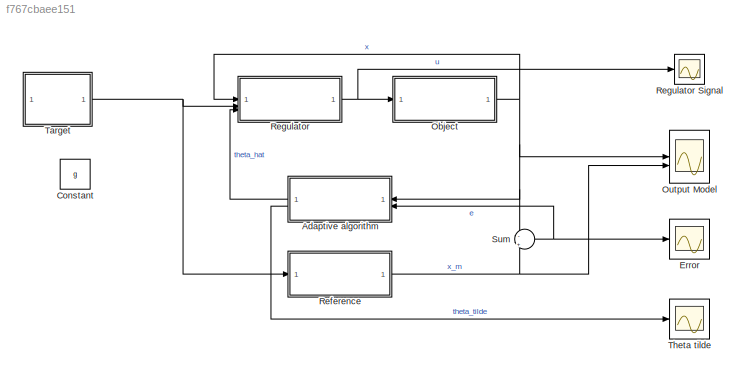
MODEL slx_f767cbaee151
KIND model
CONFIG AbsTol = auto
CONFIG EnableMultiTasking = off
CONFIG FixedStep = 1e-3
CONFIG MaxStep = auto
CONFIG MinStep = auto
CONFIG RelTol = 1e-3
CONFIG SampleTimeConstraint = Unconstrained
CONFIG SolverName = FixedStepAuto
CONFIG StartTime = 0.0
CONFIG StopTime = 1000
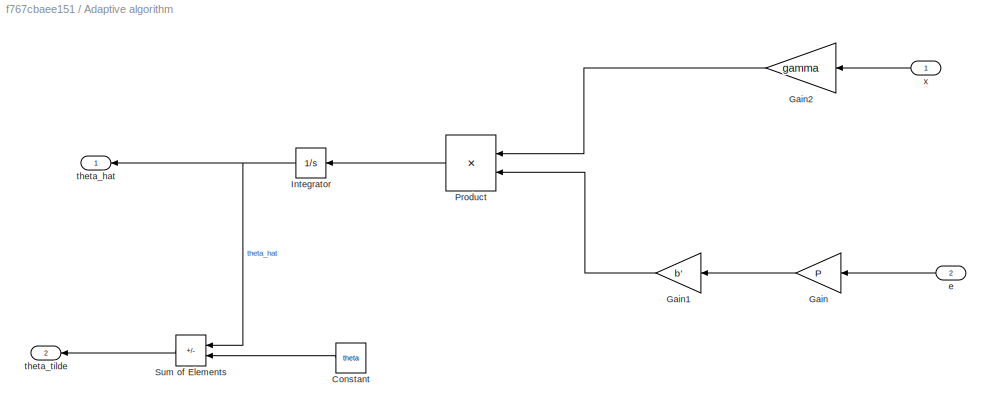
BLOCK [SubSystem] Adaptive algorithm
  NameLocation = top
BLOCK [Constant] Adaptive algorithm/Constant
  NameLocation = top
  Value = theta
BLOCK [Gain] Adaptive algorithm/Gain
  Gain = P
  Multiplication = Matrix(K*u)
  NameLocation = top
BLOCK [Gain] Adaptive algorithm/Gain1
  Gain = b'
  Multiplication = Matrix(K*u)
  NameLocation = top
BLOCK [Gain] Adaptive algorithm/Gain2
  Gain = gamma
  NameLocation = top
BLOCK [Integrator] Adaptive algorithm/Integrator
  NameLocation = top
BLOCK [Product] Adaptive algorithm/Product
  Multiplication = Matrix(*)
  NameLocation = top
BLOCK [Sum] Adaptive algorithm/Sum of Elements
  IconShape = rectangular
  Inputs = -+
  NameLocation = top
BLOCK [Inport] Adaptive algorithm/e
  NameLocation = top
  Port = 2
BLOCK [Outport] Adaptive algorithm/theta_hat
  NameLocation = top
BLOCK [Outport] Adaptive algorithm/theta_tilde
  NameLocation = top
  Port = 2
BLOCK [Inport] Adaptive algorithm/x
  NameLocation = top
BLOCK [Constant] Constant
  Value = g
BLOCK [Scope] Error
  Floating = off
  NumInputPorts = 1
  ScopeSpecificationString = Simulink.scopes.TimeScopeBlockCfg('CurrentConfiguration', extmgr.ConfigurationSet(extmgr.Configuration('Core','General UI',true,'FigureColor',[1 1 1]),extmgr.Configuration('Core','Source UI',true),extmgr.Configuration('Sources','WiredSimulink',true,'DataLoggingVariableName','ScopeData1'),extmgr.Configuration('Visuals','Time Domain',true,'SerializedDisplays',{struct('MinYLimReal','-2.49092','MaxYLi...<+1707ch>
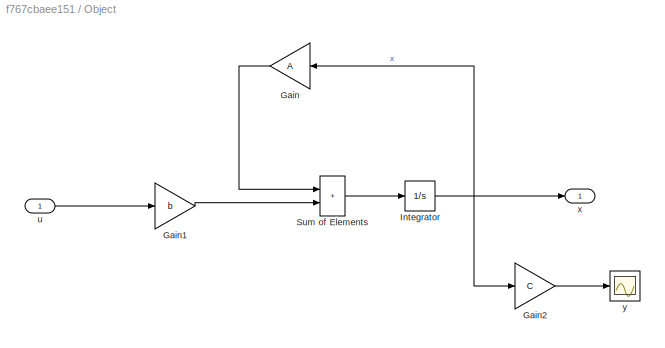
BLOCK [SubSystem] Object
BLOCK [Gain] Object/Gain
  Gain = A
  Multiplication = Matrix(K*u)
  NameLocation = top
BLOCK [Gain] Object/Gain1
  Gain = b
  Multiplication = Matrix(K*u)
BLOCK [Gain] Object/Gain2
  Gain = C
  Multiplication = Matrix(K*u)
BLOCK [Integrator] Object/Integrator
  InitialCondition = 1
BLOCK [Sum] Object/Sum of Elements
  IconShape = rectangular
BLOCK [Inport] Object/u
BLOCK [Outport] Object/x
BLOCK [Scope] Object/y
  Floating = off
  NumInputPorts = 1
  ScopeSpecificationString = Simulink.scopes.TimeScopeBlockCfg('CurrentConfiguration', extmgr.ConfigurationSet(extmgr.Configuration('Core','General UI',true,'FigureColor',[1 1 1]),extmgr.Configuration('Core','Source UI',true),extmgr.Configuration('Sources','WiredSimulink',true,'DataLoggingVariableName','ScopeData1'),extmgr.Configuration('Visuals','Time Domain',true,'SerializedDisplays',{struct('MinYLimReal','-0.73005','MaxYLi...<+1642ch>
BLOCK [Scope] Output Model
  Floating = off
  NumInputPorts = 2
  ScopeSpecificationString = Simulink.scopes.TimeScopeBlockCfg('CurrentConfiguration', extmgr.ConfigurationSet(extmgr.Configuration('Core','General UI',true,'FigureColor',[1 1 1]),extmgr.Configuration('Core','Source UI',true),extmgr.Configuration('Sources','WiredSimulink',true,'DataLoggingVariableName','ScopeData2'),extmgr.Configuration('Visuals','Time Domain',true,'SerializedDisplays',{struct('MinYLimReal','-21.02407','MaxYL...<+2042ch>
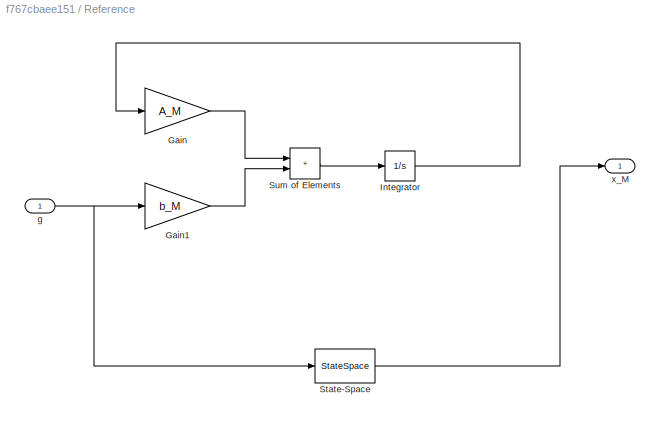
BLOCK [SubSystem] Reference
BLOCK [Gain] Reference/Gain
  Commented = on
  Gain = A_M
  Multiplication = Matrix(K*u)
BLOCK [Gain] Reference/Gain1
  Commented = on
  Gain = b_M
  Multiplication = Matrix(K*u)
BLOCK [Integrator] Reference/Integrator
  Commented = on
  InitialCondition = [0;0]
BLOCK [StateSpace] Reference/State-Space
  A = A_M
  B = b_M
  C = eye(2)
  D = zeros(2,1)
  InitialCondition = 0
BLOCK [Sum] Reference/Sum of Elements
  Commented = on
  IconShape = rectangular
BLOCK [Inport] Reference/g
BLOCK [Outport] Reference/x_M
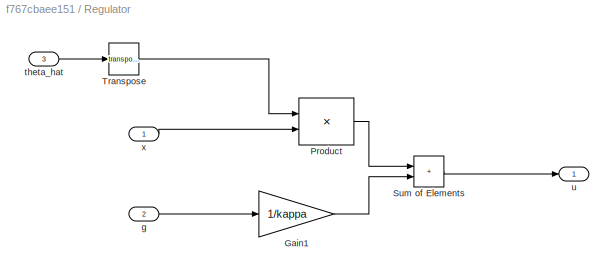
BLOCK [SubSystem] Regulator
BLOCK [Scope] Regulator Signal
  Floating = off
  NumInputPorts = 1
  ScopeSpecificationString = Simulink.scopes.TimeScopeBlockCfg('CurrentConfiguration', extmgr.ConfigurationSet(extmgr.Configuration('Core','General UI',true,'FigureColor',[1 1 1]),extmgr.Configuration('Core','Source UI',true),extmgr.Configuration('Sources','WiredSimulink',true,'DataLoggingVariableName','ScopeData3'),extmgr.Configuration('Visuals','Time Domain',true,'SerializedDisplays',{struct('MinYLimReal','-1276.04643','Max...<+1648ch>
BLOCK [Gain] Regulator/Gain1
  Gain = 1/kappa
  Multiplication = Matrix(K*u)
BLOCK [Product] Regulator/Product
  Multiplication = Matrix(*)
BLOCK [Sum] Regulator/Sum of Elements
  IconShape = rectangular
BLOCK [Math] Regulator/Transpose
  Operator = transpose
BLOCK [Inport] Regulator/g
  Port = 2
BLOCK [Inport] Regulator/theta_hat
  Port = 3
BLOCK [Outport] Regulator/u
BLOCK [Inport] Regulator/x
BLOCK [Sum] Sum
  Inputs = -|+
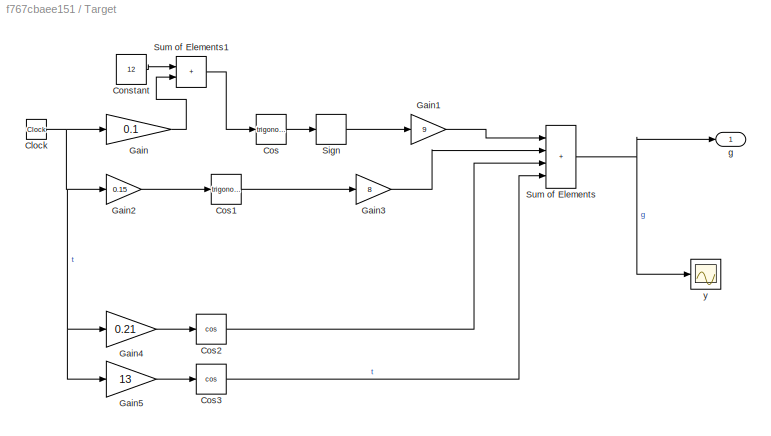
BLOCK [SubSystem] Target
BLOCK [Clock] Target/Clock
BLOCK [Constant] Target/Constant
  Value = 12
BLOCK [Trigonometry] Target/Cos
BLOCK [Trigonometry] Target/Cos1
BLOCK [Trigonometry] Target/Cos2
  Operator = cos
BLOCK [Trigonometry] Target/Cos3
  Commented = on
  Operator = cos
BLOCK [Gain] Target/Gain
  Gain = 0.1
BLOCK [Gain] Target/Gain1
  Gain = 9
BLOCK [Gain] Target/Gain2
  Gain = 0.15
BLOCK [Gain] Target/Gain3
  Gain = 8
BLOCK [Gain] Target/Gain4
  Gain = 0.21
BLOCK [Gain] Target/Gain5
  Commented = on
  Gain = 13
BLOCK [Signum] Target/Sign
  Commented = through
BLOCK [Sum] Target/Sum of Elements
  IconShape = rectangular
  Inputs = ++++
BLOCK [Sum] Target/Sum of Elements1
  IconShape = rectangular
BLOCK [Outport] Target/g
BLOCK [Scope] Target/y
  Floating = off
  NumInputPorts = 1
  ScopeSpecificationString = Simulink.scopes.TimeScopeBlockCfg('CurrentConfiguration', extmgr.ConfigurationSet(extmgr.Configuration('Core','General UI',true,'FigureColor',[1 1 1]),extmgr.Configuration('Core','Source UI',true),extmgr.Configuration('Sources','WiredSimulink',true,'DataLoggingVariableName','ScopeData2'),extmgr.Configuration('Visuals','Time Domain',true,'SerializedDisplays',{struct('MinYLimReal','-22.08518','MaxYL...<+1632ch>
BLOCK [Scope] Theta tilde
  Floating = off
  NumInputPorts = 1
  ScopeSpecificationString = Simulink.scopes.TimeScopeBlockCfg('CurrentConfiguration', extmgr.ConfigurationSet(extmgr.Configuration('Core','General UI',true,'FigureColor',[1 1 1]),extmgr.Configuration('Core','Source UI',true),extmgr.Configuration('Sources','WiredSimulink',true,'DataLoggingVariableName','ScopeData4'),extmgr.Configuration('Visuals','Time Domain',true,'SerializedDisplays',{struct('MinYLimReal','-26.02648','MaxYL...<+1708ch>
LINE Adaptive algorithm/Constant:1 -> Adaptive algorithm/Sum of Elements:2
LINE Adaptive algorithm/Gain1:1 -> Adaptive algorithm/Product:2
LINE Adaptive algorithm/Gain2:1 -> Adaptive algorithm/Product:1
LINE Adaptive algorithm/Gain:1 -> Adaptive algorithm/Gain1:1
NET Adaptive algorithm/Integrator:1 -> Adaptive algorithm/Sum of Elements:1, Adaptive algorithm/theta_hat:1
LINE Adaptive algorithm/Product:1 -> Adaptive algorithm/Integrator:1
LINE Adaptive algorithm/Sum of Elements:1 -> Adaptive algorithm/theta_tilde:1
LINE Adaptive algorithm/e:1 -> Adaptive algorithm/Gain:1
LINE Adaptive algorithm/x:1 -> Adaptive algorithm/Gain2:1
LINE Adaptive algorithm:1 -> Regulator:3
LINE Adaptive algorithm:2 -> Theta tilde:1
LINE Object/Gain1:1 -> Object/Sum of Elements:2
LINE Object/Gain2:1 -> Object/y:1
LINE Object/Gain:1 -> Object/Sum of Elements:1
NET Object/Integrator:1 -> Object/Gain2:1, Object/Gain:1, Object/x:1
LINE Object/Sum of Elements:1 -> Object/Integrator:1
LINE Object/u:1 -> Object/Gain1:1
NET Object:1 -> Adaptive algorithm:1, Output Model:1, Regulator:1, Sum:1
LINE Reference/Gain1:1 -> Reference/Sum of Elements:2
LINE Reference/Gain:1 -> Reference/Sum of Elements:1
LINE Reference/Integrator:1 -> Reference/Gain:1
LINE Reference/State-Space:1 -> Reference/x_M:1
LINE Reference/Sum of Elements:1 -> Reference/Integrator:1
NET Reference/g:1 -> Reference/Gain1:1, Reference/State-Space:1
NET Reference:1 -> Output Model:2, Sum:2
LINE Regulator/Gain1:1 -> Regulator/Sum of Elements:2
LINE Regulator/Product:1 -> Regulator/Sum of Elements:1
LINE Regulator/Sum of Elements:1 -> Regulator/u:1
LINE Regulator/Transpose:1 -> Regulator/Product:1
LINE Regulator/g:1 -> Regulator/Gain1:1
LINE Regulator/theta_hat:1 -> Regulator/Transpose:1
LINE Regulator/x:1 -> Regulator/Product:2
NET Regulator:1 -> Object:1, Regulator Signal:1
NET Sum:1 -> Adaptive algorithm:2, Error:1
NET Target/Clock:1 -> Target/Gain2:1, Target/Gain4:1, Target/Gain5:1, Target/Gain:1
LINE Target/Constant:1 -> Target/Sum of Elements1:1
LINE Target/Cos1:1 -> Target/Gain3:1
LINE Target/Cos2:1 -> Target/Sum of Elements:3
LINE Target/Cos3:1 -> Target/Sum of Elements:4
LINE Target/Cos:1 -> Target/Sign:1
LINE Target/Gain1:1 -> Target/Sum of Elements:1
LINE Target/Gain2:1 -> Target/Cos1:1
LINE Target/Gain3:1 -> Target/Sum of Elements:2
LINE Target/Gain4:1 -> Target/Cos2:1
LINE Target/Gain5:1 -> Target/Cos3:1
LINE Target/Gain:1 -> Target/Sum of Elements1:2
LINE Target/Sign:1 -> Target/Gain1:1
LINE Target/Sum of Elements1:1 -> Target/Cos:1
NET Target/Sum of Elements:1 -> Target/g:1, Target/y:1
NET Target:1 -> Reference:1, Regulator:2
note: NET lines group one-source signal fan-out (src -> all destinations, sorted); 1:1 wires keep LINE
